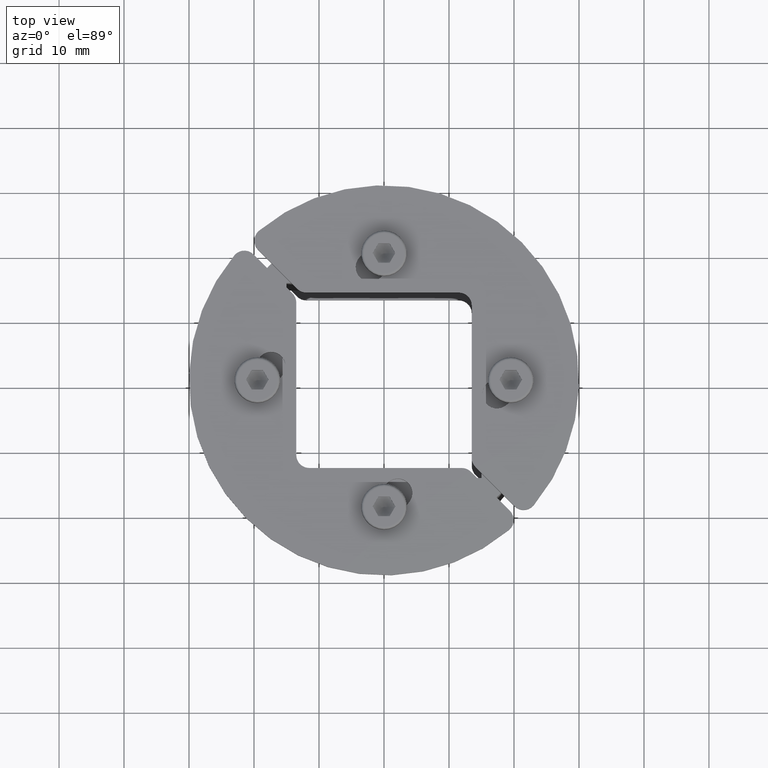
[diagram: clean part render]
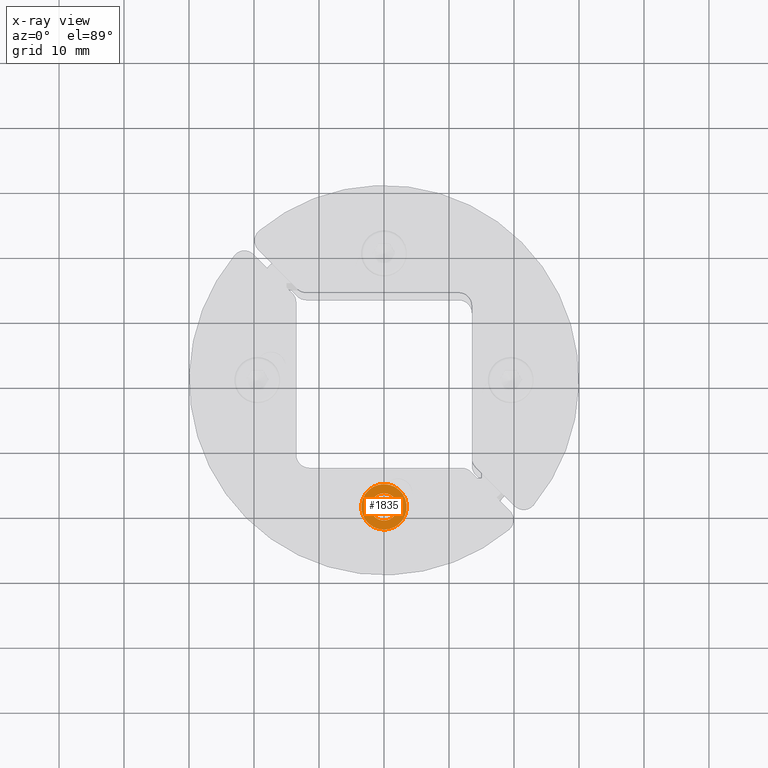
[diagram: x-ray — body ghosted, one internal face saturated and labeled with its STEP entity id]
A machine part, top view, then the same camera in x-ray: the body is ghosted and one INTERNAL B-rep face — a face not visible from any outside direction — is saturated and labeled: STEP entity #1835.
In plain terms, the highlighted planar face has unit normal (0, 0, -1).
Its self-contained STEP definition (entity closure, byte-faithful):
#1773=CARTESIAN_POINT('',(2.214276E-015,2.100000000000002,0.0));
#1774=VERTEX_POINT('',#1773);
#1775=CARTESIAN_POINT('',(2.220446E-015,-1.175341E-016,0.0));
#1776=DIRECTION('',(1.0,0.0,0.0));
#1777=DIRECTION('',(0.0,-1.0,0.0));
#1778=AXIS2_PLACEMENT_3D('',#1775,#1776,#1777);
#1779=CIRCLE('',#1778,2.100000000000002);
#1780=EDGE_CURVE('',#1774,#1774,#1779,.T.);
#1816=CARTESIAN_POINT('',(2.220446E-015,2.750000000000002,0.0));
#1817=DIRECTION('',(1.0,0.0,0.0));
#1818=DIRECTION('',(0.0,0.0,-1.0));
#1819=AXIS2_PLACEMENT_3D('',#1816,#1817,#1818);
#1820=PLANE('',#1819);
#1821=CARTESIAN_POINT('',(2.220446E-015,3.500000000000003,0.0));
#1822=VERTEX_POINT('',#1821);
#1823=CARTESIAN_POINT('',(0.0,-1.175341E-016,0.0));
#1824=DIRECTION('',(1.0,0.0,0.0));
#1825=DIRECTION('',(0.0,1.0,0.0));
#1826=AXIS2_PLACEMENT_3D('',#1823,#1824,#1825);
#1827=CIRCLE('',#1826,3.500000000000003);
#1828=EDGE_CURVE('',#1822,#1822,#1827,.T.);
#1829=ORIENTED_EDGE('',*,*,#1828,.T.);
#1830=EDGE_LOOP('',(#1829));
#1831=FACE_OUTER_BOUND('',#1830,.T.);
#1832=ORIENTED_EDGE('',*,*,#1780,.F.);
#1833=EDGE_LOOP('',(#1832));
#1834=FACE_BOUND('',#1833,.T.);
#1835=ADVANCED_FACE('',(#1831,#1834),#1820,.T.);